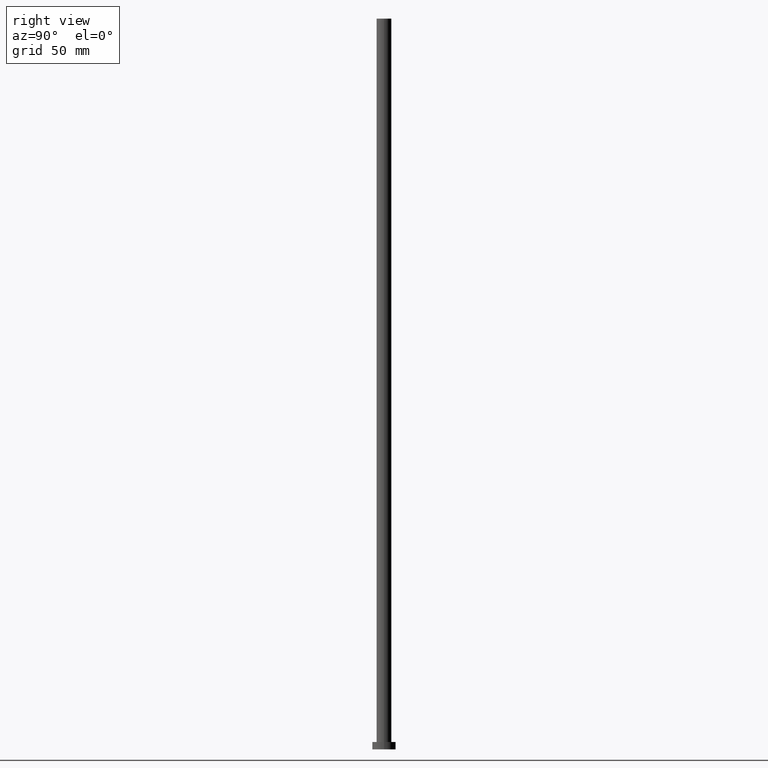
[diagram: clean part render]
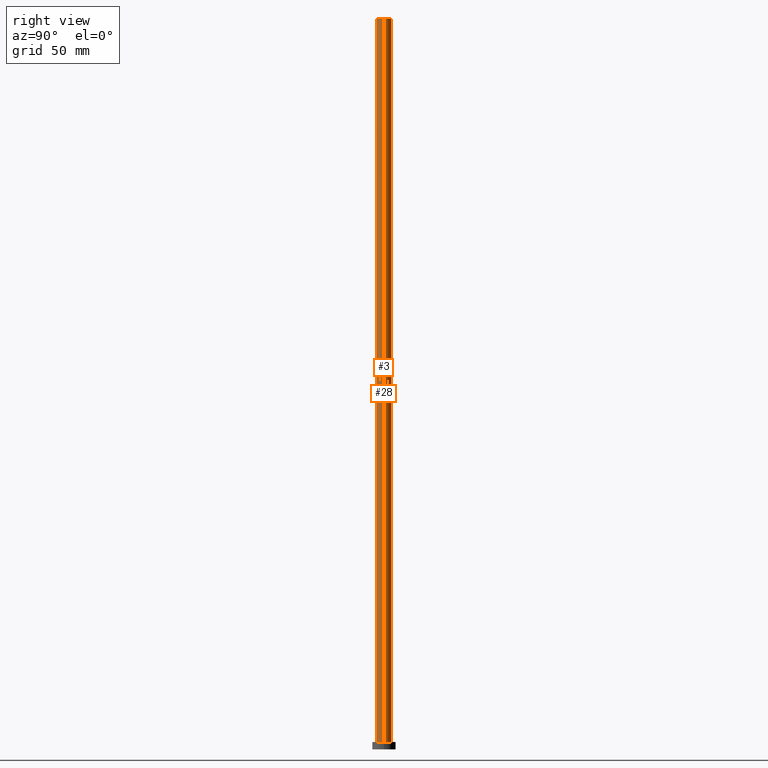
[diagram: same view with one multi-face feature highlighted, each face labeled with its STEP entity id]
A machine part, right view. The highlighted faces form ONE feature: a constant-radius fillet chain: 2 tangent blend faces with common blend radius 5.1 mm. The faces share edges in the B-rep.
Their STEP definitions:
[1] entity #3 (Cylinder):
#2 = AXIS2_PLACEMENT_3D ( 'NONE', #12, #33, #134 ) ;
#3 = ADVANCED_FACE ( 'NONE', ( #16 ), #119, .T. ) ;
#6 = CIRCLE ( 'NONE', #62, 5.099999999999999645 ) ;
#12 = CARTESIAN_POINT ( 'NONE',  ( 0.000000000000000000, 0.000000000000000000, 500.0000000000000000 ) ) ;
#16 = FACE_OUTER_BOUND ( 'NONE', #161, .T. ) ;
#17 = VERTEX_POINT ( 'NONE', #255 ) ;
#33 = DIRECTION ( 'NONE',  ( -0.000000000000000000, -0.000000000000000000, -1.000000000000000000 ) ) ;
#35 = ORIENTED_EDGE ( 'NONE', *, *, #251, .F. ) ;
#41 = CIRCLE ( 'NONE', #169, 5.099999999999999645 ) ;
#52 = DIRECTION ( 'NONE',  ( 1.000000000000000000, 0.000000000000000000, 0.000000000000000000 ) ) ;
#62 = AXIS2_PLACEMENT_3D ( 'NONE', #118, #165, #139 ) ;
#71 = CARTESIAN_POINT ( 'NONE',  ( 5.099999999999999645, 6.245698675651500839E-16, 500.0000000000000000 ) ) ;
#87 = EDGE_CURVE ( 'NONE', #99, #92, #220, .T. ) ;
#92 = VERTEX_POINT ( 'NONE', #230 ) ;
#98 = CARTESIAN_POINT ( 'NONE',  ( -5.099999999999999645, 0.000000000000000000, 500.0000000000000000 ) ) ;
#99 = VERTEX_POINT ( 'NONE', #236 ) ;
#103 = ORIENTED_EDGE ( 'NONE', *, *, #254, .T. ) ;
#118 = CARTESIAN_POINT ( 'NONE',  ( 0.000000000000000000, 0.000000000000000000, 5.000000000000000000 ) ) ;
#119 = CYLINDRICAL_SURFACE ( 'NONE', #2, 5.099999999999999645 ) ;
#134 = DIRECTION ( 'NONE',  ( -1.000000000000000000, 0.000000000000000000, 0.000000000000000000 ) ) ;
#139 = DIRECTION ( 'NONE',  ( 1.000000000000000000, 0.000000000000000000, 0.000000000000000000 ) ) ;
#151 = EDGE_CURVE ( 'NONE', #17, #175, #249, .T. ) ;
#161 = EDGE_LOOP ( 'NONE', ( #234, #35, #171, #103 ) ) ;
#165 = DIRECTION ( 'NONE',  ( 0.000000000000000000, 0.000000000000000000, 1.000000000000000000 ) ) ;
#169 = AXIS2_PLACEMENT_3D ( 'NONE', #184, #233, #52 ) ;
#171 = ORIENTED_EDGE ( 'NONE', *, *, #87, .T. ) ;
#175 = VERTEX_POINT ( 'NONE', #191 ) ;
#177 = DIRECTION ( 'NONE',  ( -0.000000000000000000, -0.000000000000000000, -1.000000000000000000 ) ) ;
#184 = CARTESIAN_POINT ( 'NONE',  ( 0.000000000000000000, 0.000000000000000000, 500.0000000000000000 ) ) ;
#186 = VECTOR ( 'NONE', #177, 1000.000000000000000 ) ;
#191 = CARTESIAN_POINT ( 'NONE',  ( 5.099999999999999645, 6.245698675651500839E-16, 5.000000000000000000 ) ) ;
#212 = VECTOR ( 'NONE', #232, 1000.000000000000000 ) ;
#220 = LINE ( 'NONE', #98, #186 ) ;
#230 = CARTESIAN_POINT ( 'NONE',  ( -5.099999999999999645, 0.000000000000000000, 5.000000000000000000 ) ) ;
#232 = DIRECTION ( 'NONE',  ( -0.000000000000000000, -0.000000000000000000, -1.000000000000000000 ) ) ;
#233 = DIRECTION ( 'NONE',  ( 0.000000000000000000, 0.000000000000000000, 1.000000000000000000 ) ) ;
#234 = ORIENTED_EDGE ( 'NONE', *, *, #151, .F. ) ;
#236 = CARTESIAN_POINT ( 'NONE',  ( -5.099999999999999645, 0.000000000000000000, 500.0000000000000000 ) ) ;
#249 = LINE ( 'NONE', #71, #212 ) ;
#251 = EDGE_CURVE ( 'NONE', #99, #17, #41, .T. ) ;
#254 = EDGE_CURVE ( 'NONE', #92, #175, #6, .T. ) ;
#255 = CARTESIAN_POINT ( 'NONE',  ( 5.099999999999999645, 6.245698675651500839E-16, 500.0000000000000000 ) ) ;
[2] entity #28 (Cylinder):
#1 = DIRECTION ( 'NONE',  ( 1.000000000000000000, 0.000000000000000000, 0.000000000000000000 ) ) ;
#17 = VERTEX_POINT ( 'NONE', #255 ) ;
#28 = ADVANCED_FACE ( 'NONE', ( #156 ), #180, .T. ) ;
#45 = CIRCLE ( 'NONE', #193, 5.099999999999999645 ) ;
#47 = ORIENTED_EDGE ( 'NONE', *, *, #87, .F. ) ;
#64 = DIRECTION ( 'NONE',  ( 1.000000000000000000, 0.000000000000000000, 0.000000000000000000 ) ) ;
#68 = CARTESIAN_POINT ( 'NONE',  ( 0.000000000000000000, 0.000000000000000000, 500.0000000000000000 ) ) ;
#71 = CARTESIAN_POINT ( 'NONE',  ( 5.099999999999999645, 6.245698675651500839E-16, 500.0000000000000000 ) ) ;
#74 = DIRECTION ( 'NONE',  ( -0.000000000000000000, -0.000000000000000000, -1.000000000000000000 ) ) ;
#83 = CIRCLE ( 'NONE', #229, 5.099999999999999645 ) ;
#85 = CARTESIAN_POINT ( 'NONE',  ( 0.000000000000000000, 0.000000000000000000, 5.000000000000000000 ) ) ;
#87 = EDGE_CURVE ( 'NONE', #99, #92, #220, .T. ) ;
#92 = VERTEX_POINT ( 'NONE', #230 ) ;
#98 = CARTESIAN_POINT ( 'NONE',  ( -5.099999999999999645, 0.000000000000000000, 500.0000000000000000 ) ) ;
#99 = VERTEX_POINT ( 'NONE', #236 ) ;
#109 = EDGE_LOOP ( 'NONE', ( #146, #240, #214, #47 ) ) ;
#135 = DIRECTION ( 'NONE',  ( 0.000000000000000000, 0.000000000000000000, 1.000000000000000000 ) ) ;
#137 = DIRECTION ( 'NONE',  ( 0.000000000000000000, 0.000000000000000000, 1.000000000000000000 ) ) ;
#146 = ORIENTED_EDGE ( 'NONE', *, *, #195, .F. ) ;
#151 = EDGE_CURVE ( 'NONE', #17, #175, #249, .T. ) ;
#156 = FACE_OUTER_BOUND ( 'NONE', #109, .T. ) ;
#175 = VERTEX_POINT ( 'NONE', #191 ) ;
#177 = DIRECTION ( 'NONE',  ( -0.000000000000000000, -0.000000000000000000, -1.000000000000000000 ) ) ;
#180 = CYLINDRICAL_SURFACE ( 'NONE', #246, 5.099999999999999645 ) ;
#186 = VECTOR ( 'NONE', #177, 1000.000000000000000 ) ;
#191 = CARTESIAN_POINT ( 'NONE',  ( 5.099999999999999645, 6.245698675651500839E-16, 5.000000000000000000 ) ) ;
#193 = AXIS2_PLACEMENT_3D ( 'NONE', #68, #135, #64 ) ;
#195 = EDGE_CURVE ( 'NONE', #17, #99, #45, .T. ) ;
#206 = EDGE_CURVE ( 'NONE', #175, #92, #83, .T. ) ;
#212 = VECTOR ( 'NONE', #232, 1000.000000000000000 ) ;
#214 = ORIENTED_EDGE ( 'NONE', *, *, #206, .T. ) ;
#220 = LINE ( 'NONE', #98, #186 ) ;
#229 = AXIS2_PLACEMENT_3D ( 'NONE', #85, #137, #1 ) ;
#230 = CARTESIAN_POINT ( 'NONE',  ( -5.099999999999999645, 0.000000000000000000, 5.000000000000000000 ) ) ;
#232 = DIRECTION ( 'NONE',  ( -0.000000000000000000, -0.000000000000000000, -1.000000000000000000 ) ) ;
#235 = DIRECTION ( 'NONE',  ( -1.000000000000000000, 0.000000000000000000, 0.000000000000000000 ) ) ;
#236 = CARTESIAN_POINT ( 'NONE',  ( -5.099999999999999645, 0.000000000000000000, 500.0000000000000000 ) ) ;
#240 = ORIENTED_EDGE ( 'NONE', *, *, #151, .T. ) ;
#246 = AXIS2_PLACEMENT_3D ( 'NONE', #253, #74, #235 ) ;
#249 = LINE ( 'NONE', #71, #212 ) ;
#253 = CARTESIAN_POINT ( 'NONE',  ( 0.000000000000000000, 0.000000000000000000, 500.0000000000000000 ) ) ;
#255 = CARTESIAN_POINT ( 'NONE',  ( 5.099999999999999645, 6.245698675651500839E-16, 500.0000000000000000 ) ) ;